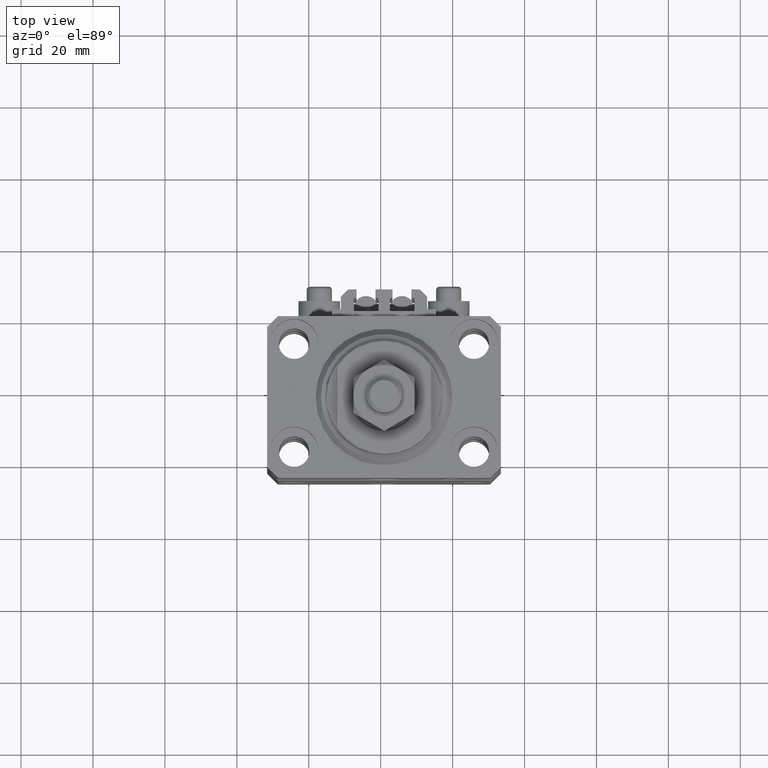
[diagram: clean part render]
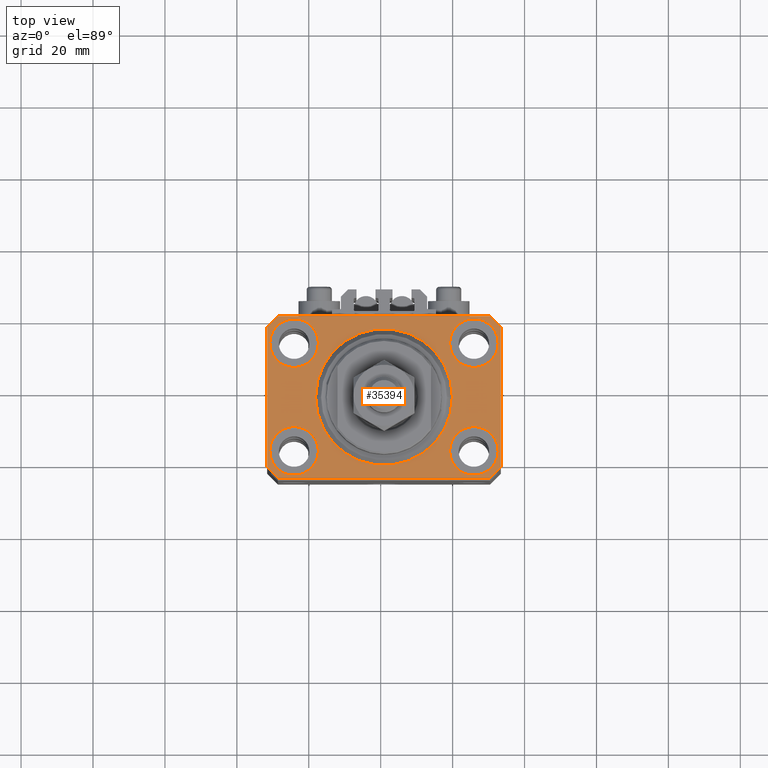
[diagram: same view with one face highlighted and labeled with its STEP entity id]
A machine part, top view. The second image highlights one B-rep face of the part: STEP entity #35394.
In plain terms, the highlighted planar face has unit normal (0, 0, 1).
Its self-contained STEP definition (entity closure, byte-faithful):
#157 = EDGE_CURVE ( 'NONE', #9721, #38755, #12275, .T. ) ;
#244 = ORIENTED_EDGE ( 'NONE', *, *, #47988, .F. ) ;
#658 = CARTESIAN_POINT ( 'NONE',  ( -32.49999999999650413, -19.49999999999949907, 0.000000000000000000 ) ) ;
#1198 = ORIENTED_EDGE ( 'NONE', *, *, #2489, .T. ) ;
#1200 = DIRECTION ( 'NONE',  ( 0.7071067811865483499, 0.7071067811865466846, 0.000000000000000000 ) ) ;
#1269 = AXIS2_PLACEMENT_3D ( 'NONE', #48756, #33902, #45427 ) ;
#1548 = VECTOR ( 'NONE', #50117, 1000.000000000000000 ) ;
#1602 = CARTESIAN_POINT ( 'NONE',  ( -32.49999999999650413, 19.49999999999949907, 0.000000000000000000 ) ) ;
#1897 = CARTESIAN_POINT ( 'NONE',  ( 31.74999999997746869, -15.00000000000000000, 0.000000000000000000 ) ) ;
#2018 = DIRECTION ( 'NONE',  ( 1.000000000000000000, 0.000000000000000000, 0.000000000000000000 ) ) ;
#2136 = CARTESIAN_POINT ( 'NONE',  ( -29.49999999999650413, 22.49999999999949907, 0.000000000000000000 ) ) ;
#2489 = EDGE_CURVE ( 'NONE', #41000, #27092, #43469, .T. ) ;
#3012 = AXIS2_PLACEMENT_3D ( 'NONE', #30704, #6397, #34791 ) ;
#3235 = AXIS2_PLACEMENT_3D ( 'NONE', #19046, #10322, #41547 ) ;
#3318 = ORIENTED_EDGE ( 'NONE', *, *, #29418, .T. ) ;
#3333 = CARTESIAN_POINT ( 'NONE',  ( -29.49999999999650413, -22.49999999999949907, 0.000000000000000000 ) ) ;
#3710 = DIRECTION ( 'NONE',  ( 0.000000000000000000, 0.000000000000000000, 1.000000000000000000 ) ) ;
#4753 = DIRECTION ( 'NONE',  ( -1.000000000000000000, -2.352167425053553784E-16, 0.000000000000000000 ) ) ;
#4884 = ORIENTED_EDGE ( 'NONE', *, *, #5387, .F. ) ;
#5387 = EDGE_CURVE ( 'NONE', #24121, #19507, #15741, .T. ) ;
#5915 = DIRECTION ( 'NONE',  ( 0.000000000000000000, 0.000000000000000000, 1.000000000000000000 ) ) ;
#6280 = FACE_BOUND ( 'NONE', #22150, .T. ) ;
#6397 = DIRECTION ( 'NONE',  ( 0.000000000000000000, 0.000000000000000000, 1.000000000000000000 ) ) ;
#6552 = CIRCLE ( 'NONE', #40837, 6.749999999977465137 ) ;
#6753 = VECTOR ( 'NONE', #27767, 1000.000000000000000 ) ;
#7025 = DIRECTION ( 'NONE',  ( 0.000000000000000000, 0.000000000000000000, 1.000000000000000000 ) ) ;
#7389 = LINE ( 'NONE', #47058, #20766 ) ;
#7675 = VERTEX_POINT ( 'NONE', #36431 ) ;
#8031 = CARTESIAN_POINT ( 'NONE',  ( 29.49999999999707967, 22.49999999999951328, 0.000000000000000000 ) ) ;
#8496 = VERTEX_POINT ( 'NONE', #10491 ) ;
#9060 = CARTESIAN_POINT ( 'NONE',  ( 0.000000000000000000, 0.000000000000000000, 0.000000000000000000 ) ) ;
#9076 = LINE ( 'NONE', #658, #24071 ) ;
#9129 = ORIENTED_EDGE ( 'NONE', *, *, #18956, .F. ) ;
#9144 = EDGE_LOOP ( 'NONE', ( #49369, #44286, #1198, #17943, #17201, #3318, #32945, #25528 ) ) ;
#9526 = CIRCLE ( 'NONE', #3012, 6.749999999958452790 ) ;
#9721 = VERTEX_POINT ( 'NONE', #18912 ) ;
#9962 = ORIENTED_EDGE ( 'NONE', *, *, #18705, .F. ) ;
#9981 = ORIENTED_EDGE ( 'NONE', *, *, #10894, .F. ) ;
#10322 = DIRECTION ( 'NONE',  ( 0.000000000000000000, 0.000000000000000000, 1.000000000000000000 ) ) ;
#10491 = CARTESIAN_POINT ( 'NONE',  ( -19.00000000000000000, 2.326828918379970970E-15, 0.000000000000000000 ) ) ;
#10647 = CARTESIAN_POINT ( 'NONE',  ( -18.24999999995846167, -15.00000000000000000, 0.000000000000000000 ) ) ;
#10720 = VECTOR ( 'NONE', #32687, 1000.000000000000000 ) ;
#10894 = EDGE_CURVE ( 'NONE', #38755, #9721, #42878, .T. ) ;
#12028 = CARTESIAN_POINT ( 'NONE',  ( 25.00000000000000355, -15.00000000000000000, 0.000000000000000000 ) ) ;
#12275 = CIRCLE ( 'NONE', #26154, 6.750000000022533087 ) ;
#12277 = EDGE_CURVE ( 'NONE', #16009, #35539, #7389, .T. ) ;
#13676 = CARTESIAN_POINT ( 'NONE',  ( 18.25000000002253842, -15.00000000000000000, 0.000000000000000000 ) ) ;
#13963 = DIRECTION ( 'NONE',  ( 0.000000000000000000, 0.000000000000000000, 1.000000000000000000 ) ) ;
#14214 = CARTESIAN_POINT ( 'NONE',  ( -31.75000000002253842, 15.00000000000000000, 0.000000000000000000 ) ) ;
#14215 = FACE_BOUND ( 'NONE', #19259, .T. ) ;
#15741 = CIRCLE ( 'NONE', #31261, 6.750000000041541881 ) ;
#15870 = DIRECTION ( 'NONE',  ( 0.000000000000000000, 0.000000000000000000, 1.000000000000000000 ) ) ;
#16009 = VERTEX_POINT ( 'NONE', #32607 ) ;
#16027 = DIRECTION ( 'NONE',  ( 0.000000000000000000, 0.000000000000000000, 1.000000000000000000 ) ) ;
#16095 = VERTEX_POINT ( 'NONE', #29534 ) ;
#16536 = CIRCLE ( 'NONE', #23094, 19.00000000000000000 ) ;
#17201 = ORIENTED_EDGE ( 'NONE', *, *, #43178, .T. ) ;
#17340 = AXIS2_PLACEMENT_3D ( 'NONE', #9060, #16027, #39561 ) ;
#17806 = FACE_BOUND ( 'NONE', #50142, .T. ) ;
#17943 = ORIENTED_EDGE ( 'NONE', *, *, #29676, .T. ) ;
#18705 = EDGE_CURVE ( 'NONE', #47980, #47813, #9526, .T. ) ;
#18912 = CARTESIAN_POINT ( 'NONE',  ( -18.24999999997747224, 15.00000000000000000, 0.000000000000000000 ) ) ;
#18956 = EDGE_CURVE ( 'NONE', #47813, #47980, #36488, .T. ) ;
#19046 = CARTESIAN_POINT ( 'NONE',  ( -25.00000000000000355, -15.00000000000000000, 0.000000000000000000 ) ) ;
#19259 = EDGE_LOOP ( 'NONE', ( #49568, #244 ) ) ;
#19448 = LINE ( 'NONE', #48050, #31418 ) ;
#19507 = VERTEX_POINT ( 'NONE', #10647 ) ;
#20449 = CARTESIAN_POINT ( 'NONE',  ( -25.00000000000000355, -15.00000000000000000, 0.000000000000000000 ) ) ;
#20766 = VECTOR ( 'NONE', #31437, 1000.000000000000000 ) ;
#20974 = CARTESIAN_POINT ( 'NONE',  ( -25.00000000000000355, 15.00000000000000000, 0.000000000000000000 ) ) ;
#21047 = EDGE_LOOP ( 'NONE', ( #9129, #9962 ) ) ;
#22150 = EDGE_LOOP ( 'NONE', ( #42784, #33832 ) ) ;
#22364 = EDGE_CURVE ( 'NONE', #35539, #28733, #43370, .T. ) ;
#23094 = AXIS2_PLACEMENT_3D ( 'NONE', #50532, #7025, #35146 ) ;
#23156 = DIRECTION ( 'NONE',  ( 1.000000000000000000, 0.000000000000000000, 0.000000000000000000 ) ) ;
#23779 = DIRECTION ( 'NONE',  ( 1.000000000000000000, 0.000000000000000000, 0.000000000000000000 ) ) ;
#24071 = VECTOR ( 'NONE', #35958, 1000.000000000000114 ) ;
#24121 = VERTEX_POINT ( 'NONE', #24427 ) ;
#24238 = EDGE_CURVE ( 'NONE', #38974, #8496, #36949, .T. ) ;
#24404 = EDGE_CURVE ( 'NONE', #8496, #38974, #16536, .T. ) ;
#24427 = CARTESIAN_POINT ( 'NONE',  ( -31.75000000004154899, -15.00000000000000000, 0.000000000000000000 ) ) ;
#24519 = DIRECTION ( 'NONE',  ( 1.000000000000000000, 0.000000000000000000, 0.000000000000000000 ) ) ;
#24607 = AXIS2_PLACEMENT_3D ( 'NONE', #12028, #15870, #23779 ) ;
#24938 = LINE ( 'NONE', #47986, #41341 ) ;
#25528 = ORIENTED_EDGE ( 'NONE', *, *, #22364, .T. ) ;
#26129 = EDGE_LOOP ( 'NONE', ( #40166, #9981 ) ) ;
#26154 = AXIS2_PLACEMENT_3D ( 'NONE', #20974, #40652, #2018 ) ;
#26284 = CIRCLE ( 'NONE', #24607, 6.749999999977465137 ) ;
#27000 = CARTESIAN_POINT ( 'NONE',  ( -32.49999999999650413, -19.49999999999949907, 0.000000000000000000 ) ) ;
#27092 = VERTEX_POINT ( 'NONE', #27000 ) ;
#27767 = DIRECTION ( 'NONE',  ( -0.7071067811865352493, 0.7071067811865597852, 0.000000000000000000 ) ) ;
#28125 = DIRECTION ( 'NONE',  ( 0.000000000000000000, 0.000000000000000000, 1.000000000000000000 ) ) ;
#28535 = VERTEX_POINT ( 'NONE', #13676 ) ;
#28547 = VERTEX_POINT ( 'NONE', #1897 ) ;
#28733 = VERTEX_POINT ( 'NONE', #8031 ) ;
#28853 = CARTESIAN_POINT ( 'NONE',  ( -32.49999999999650413, 19.49999999999949907, 0.000000000000000000 ) ) ;
#29306 = PLANE ( 'NONE',  #1269 ) ;
#29418 = EDGE_CURVE ( 'NONE', #7675, #16009, #19448, .T. ) ;
#29534 = CARTESIAN_POINT ( 'NONE',  ( -29.49999999999650413, 22.49999999999949907, 0.000000000000000000 ) ) ;
#29558 = FACE_BOUND ( 'NONE', #21047, .T. ) ;
#29572 = DIRECTION ( 'NONE',  ( 1.000000000000000000, 0.000000000000000000, 0.000000000000000000 ) ) ;
#29676 = EDGE_CURVE ( 'NONE', #27092, #37556, #9076, .T. ) ;
#30704 = CARTESIAN_POINT ( 'NONE',  ( 24.99999999999999645, 15.00000000000000888, 0.000000000000000000 ) ) ;
#30937 = VECTOR ( 'NONE', #45383, 1000.000000000000114 ) ;
#31261 = AXIS2_PLACEMENT_3D ( 'NONE', #20449, #28125, #24519 ) ;
#31354 = CARTESIAN_POINT ( 'NONE',  ( 32.49999999999702993, 19.49999999999945999, 0.000000000000000000 ) ) ;
#31418 = VECTOR ( 'NONE', #1200, 1000.000000000000000 ) ;
#31437 = DIRECTION ( 'NONE',  ( 1.334402673828349134E-14, 1.000000000000000000, 0.000000000000000000 ) ) ;
#31839 = EDGE_CURVE ( 'NONE', #28733, #16095, #24938, .T. ) ;
#32607 = CARTESIAN_POINT ( 'NONE',  ( 32.49999999999651124, -19.49999999999949196, 0.000000000000000000 ) ) ;
#32621 = CIRCLE ( 'NONE', #3235, 6.750000000041541881 ) ;
#32687 = DIRECTION ( 'NONE',  ( 0.000000000000000000, -1.000000000000000000, 0.000000000000000000 ) ) ;
#32945 = ORIENTED_EDGE ( 'NONE', *, *, #12277, .T. ) ;
#33385 = FACE_OUTER_BOUND ( 'NONE', #9144, .T. ) ;
#33638 = FACE_BOUND ( 'NONE', #26129, .T. ) ;
#33832 = ORIENTED_EDGE ( 'NONE', *, *, #24404, .F. ) ;
#33902 = DIRECTION ( 'NONE',  ( 0.000000000000000000, 0.000000000000000000, 1.000000000000000000 ) ) ;
#34791 = DIRECTION ( 'NONE',  ( 1.000000000000000000, 0.000000000000000000, 0.000000000000000000 ) ) ;
#34843 = ORIENTED_EDGE ( 'NONE', *, *, #43695, .F. ) ;
#35005 = LINE ( 'NONE', #46778, #1548 ) ;
#35146 = DIRECTION ( 'NONE',  ( 1.000000000000000000, 0.000000000000000000, 0.000000000000000000 ) ) ;
#35394 = ADVANCED_FACE ( 'NONE', ( #17806, #14215, #29558, #33638, #6280, #33385 ), #29306, .T. ) ;
#35539 = VERTEX_POINT ( 'NONE', #42860 ) ;
#35958 = DIRECTION ( 'NONE',  ( 0.7071067811865474617, -0.7071067811865474617, 0.000000000000000000 ) ) ;
#36431 = CARTESIAN_POINT ( 'NONE',  ( 29.49999999999650413, -22.49999999999949196, 0.000000000000000000 ) ) ;
#36488 = CIRCLE ( 'NONE', #50410, 6.749999999958452790 ) ;
#36599 = CARTESIAN_POINT ( 'NONE',  ( 19.00000000000000000, 0.000000000000000000, 0.000000000000000000 ) ) ;
#36949 = CIRCLE ( 'NONE', #17340, 19.00000000000000000 ) ;
#37122 = CARTESIAN_POINT ( 'NONE',  ( 31.74999999995845101, 15.00000000000000888, 0.000000000000000000 ) ) ;
#37556 = VERTEX_POINT ( 'NONE', #3333 ) ;
#38755 = VERTEX_POINT ( 'NONE', #14214 ) ;
#38974 = VERTEX_POINT ( 'NONE', #36599 ) ;
#39265 = CARTESIAN_POINT ( 'NONE',  ( 24.99999999999999645, 15.00000000000000888, 0.000000000000000000 ) ) ;
#39561 = DIRECTION ( 'NONE',  ( 1.000000000000000000, 0.000000000000000000, 0.000000000000000000 ) ) ;
#40166 = ORIENTED_EDGE ( 'NONE', *, *, #157, .F. ) ;
#40652 = DIRECTION ( 'NONE',  ( 0.000000000000000000, 0.000000000000000000, 1.000000000000000000 ) ) ;
#40837 = AXIS2_PLACEMENT_3D ( 'NONE', #49016, #13963, #29572 ) ;
#40967 = CARTESIAN_POINT ( 'NONE',  ( -25.00000000000000355, 15.00000000000000000, 0.000000000000000000 ) ) ;
#41000 = VERTEX_POINT ( 'NONE', #1602 ) ;
#41104 = EDGE_CURVE ( 'NONE', #16095, #41000, #41785, .T. ) ;
#41228 = AXIS2_PLACEMENT_3D ( 'NONE', #40967, #5915, #44049 ) ;
#41341 = VECTOR ( 'NONE', #4753, 1000.000000000000000 ) ;
#41547 = DIRECTION ( 'NONE',  ( 1.000000000000000000, 0.000000000000000000, 0.000000000000000000 ) ) ;
#41785 = LINE ( 'NONE', #2136, #30937 ) ;
#42784 = ORIENTED_EDGE ( 'NONE', *, *, #24238, .F. ) ;
#42860 = CARTESIAN_POINT ( 'NONE',  ( 32.49999999999702993, 19.49999999999945999, 0.000000000000000000 ) ) ;
#42878 = CIRCLE ( 'NONE', #41228, 6.750000000022533087 ) ;
#43178 = EDGE_CURVE ( 'NONE', #37556, #7675, #35005, .T. ) ;
#43234 = CARTESIAN_POINT ( 'NONE',  ( 18.25000000004154543, 15.00000000000000888, 0.000000000000000000 ) ) ;
#43370 = LINE ( 'NONE', #31354, #6753 ) ;
#43469 = LINE ( 'NONE', #28853, #10720 ) ;
#43695 = EDGE_CURVE ( 'NONE', #19507, #24121, #32621, .T. ) ;
#44049 = DIRECTION ( 'NONE',  ( 1.000000000000000000, 0.000000000000000000, 0.000000000000000000 ) ) ;
#44286 = ORIENTED_EDGE ( 'NONE', *, *, #41104, .T. ) ;
#44794 = EDGE_CURVE ( 'NONE', #28547, #28535, #6552, .T. ) ;
#45383 = DIRECTION ( 'NONE',  ( -0.7071067811865474617, -0.7071067811865474617, 0.000000000000000000 ) ) ;
#45427 = DIRECTION ( 'NONE',  ( 1.000000000000000000, 0.000000000000000000, -0.000000000000000000 ) ) ;
#46778 = CARTESIAN_POINT ( 'NONE',  ( -29.49999999999650413, -22.49999999999949907, 0.000000000000000000 ) ) ;
#47058 = CARTESIAN_POINT ( 'NONE',  ( 32.49999999999651124, -19.49999999999949196, 0.000000000000000000 ) ) ;
#47813 = VERTEX_POINT ( 'NONE', #37122 ) ;
#47980 = VERTEX_POINT ( 'NONE', #43234 ) ;
#47986 = CARTESIAN_POINT ( 'NONE',  ( 29.49999999999707967, 22.49999999999951328, 0.000000000000000000 ) ) ;
#47988 = EDGE_CURVE ( 'NONE', #28535, #28547, #26284, .T. ) ;
#48050 = CARTESIAN_POINT ( 'NONE',  ( 29.49999999999650413, -22.49999999999949196, 0.000000000000000000 ) ) ;
#48756 = CARTESIAN_POINT ( 'NONE',  ( 0.000000000000000000, 0.000000000000000000, 0.000000000000000000 ) ) ;
#49016 = CARTESIAN_POINT ( 'NONE',  ( 25.00000000000000355, -15.00000000000000000, 0.000000000000000000 ) ) ;
#49369 = ORIENTED_EDGE ( 'NONE', *, *, #31839, .T. ) ;
#49568 = ORIENTED_EDGE ( 'NONE', *, *, #44794, .F. ) ;
#50117 = DIRECTION ( 'NONE',  ( 1.000000000000000000, 1.176083712526788232E-16, 0.000000000000000000 ) ) ;
#50142 = EDGE_LOOP ( 'NONE', ( #34843, #4884 ) ) ;
#50410 = AXIS2_PLACEMENT_3D ( 'NONE', #39265, #3710, #23156 ) ;
#50532 = CARTESIAN_POINT ( 'NONE',  ( 0.000000000000000000, 0.000000000000000000, 0.000000000000000000 ) ) ;